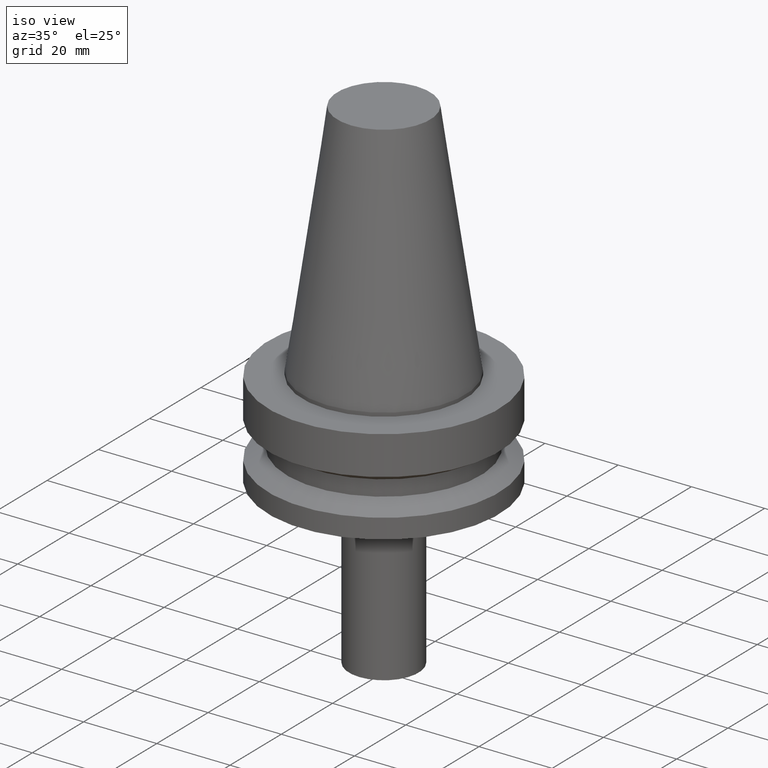
[diagram: clean part render]
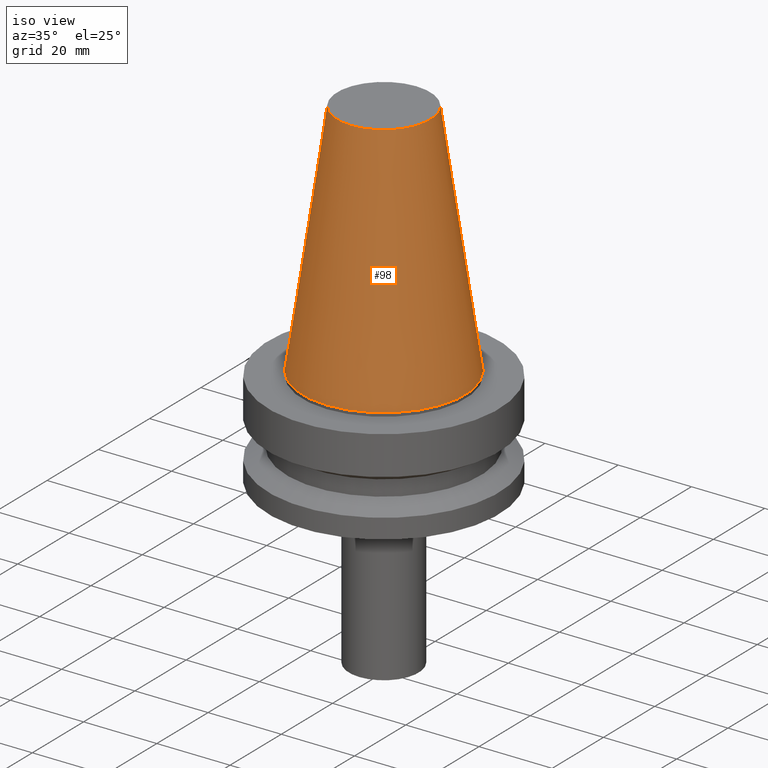
[diagram: same view with one face highlighted and labeled with its STEP entity id]
A machine part, iso view. The second image highlights one B-rep face of the part: STEP entity #98.
In plain terms, the highlighted conical surface has half-angle 8.297 deg.
Its self-contained STEP definition (entity closure, byte-faithful):
#60=EDGE_CURVE('Unnamed[1]',#147,#147,#148,.T.);
#88=EDGE_CURVE('Unnamed[1]',#189,#189,#190,.T.);
#98=ADVANCED_FACE('Unnamed[1]',(#204,#205),#206,.T.);
#147=VERTEX_POINT('',#260);
#148=CIRCLE('',#261,22.225);
#189=VERTEX_POINT('',#312);
#190=CIRCLE('',#313,12.6875000000001);
#204=FACE_BOUND('',#331,.T.);
#205=FACE_BOUND('',#332,.T.);
#206=CONICAL_SURFACE('',#333,17.4562500000001,0.144812498238936);
#260=CARTESIAN_POINT('',(6.29815412038322E-029,22.2250000000001,-2.8153873565375E-013));
#261=AXIS2_PLACEMENT_3D('',#384,#385,#386);
#312=CARTESIAN_POINT('',(-1.45217171620971E-014,12.6875000000002,65.4000000000001));
#313=AXIS2_PLACEMENT_3D('',#429,#430,#431);
#331=EDGE_LOOP('',(#445));
#332=EDGE_LOOP('',(#446));
#333=AXIS2_PLACEMENT_3D('',#447,#448,#449);
#384=CARTESIAN_POINT('',(5.99534287967969E-029,3.15318560951408E-014,-2.70006239588838E-013));
#385=DIRECTION('',(2.22044604925031E-016,-6.87296523471693E-016,-1.0));
#386=DIRECTION('',(1.73640130667518E-031,1.0,-6.87296523471693E-016));
#429=CARTESIAN_POINT('',(-1.45217171620971E-014,7.64810487301898E-014,65.4000000000001));
#430=DIRECTION('',(2.22044604925031E-016,-6.87296523471693E-016,-1.0));
#431=DIRECTION('',(1.73640130667518E-031,1.0,-6.87296523471693E-016));
#445=ORIENTED_EDGE('',*,*,#60,.F.);
#446=ORIENTED_EDGE('',*,*,#88,.T.);
#447=CARTESIAN_POINT('',(-7.26085858104851E-015,5.40064524126653E-014,32.6999999999999));
#448=DIRECTION('',(2.22044604925031E-016,-6.87296523471693E-016,-1.0));
#449=DIRECTION('',(1.73640130667518E-031,1.0,-6.87296523471693E-016));